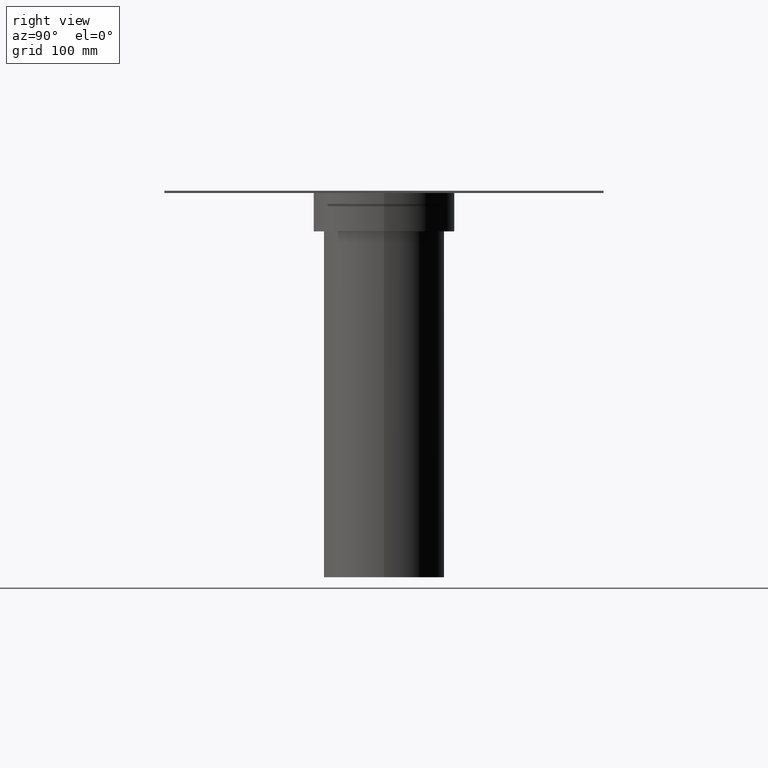
[diagram: clean part render]
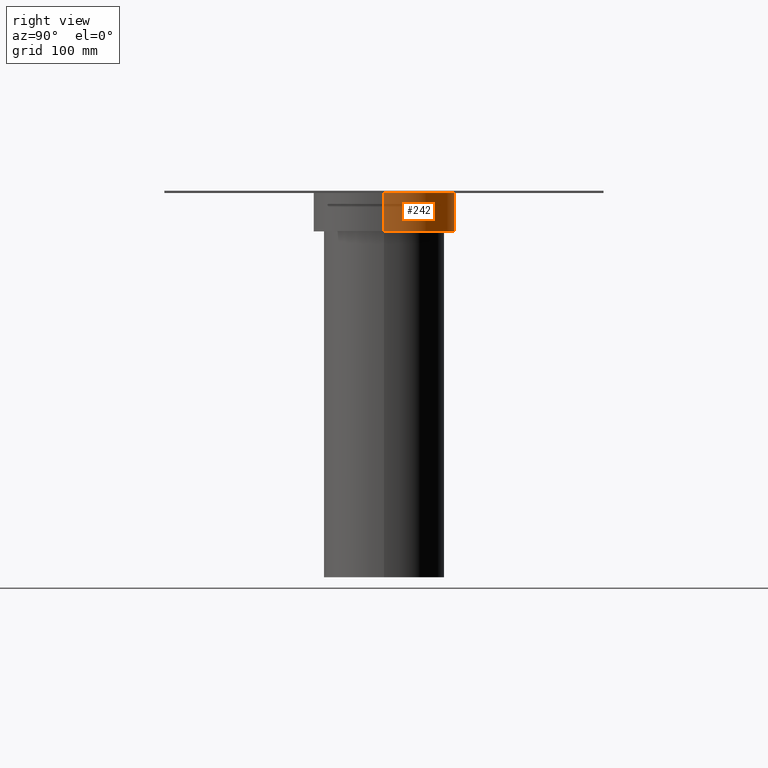
[diagram: same view with one face highlighted and labeled with its STEP entity id]
A machine part, right view. The second image highlights one B-rep face of the part: STEP entity #242.
In plain terms, the highlighted cylindrical surface (partial cylindrical patch) has radius 64.5 mm, axis along (0, 0, 1).
Its self-contained STEP definition (entity closure, byte-faithful):
#44=FACE_OUTER_BOUND('',#62,.T.);
#62=EDGE_LOOP('',(#215,#216,#217,#218));
#81=LINE('',#429,#99);
#82=LINE('',#432,#100);
#99=VECTOR('',#357,304.8);
#100=VECTOR('',#360,304.8);
#111=CIRCLE('',#291,64.5);
#112=CIRCLE('',#292,64.5);
#129=VERTEX_POINT('',#425);
#130=VERTEX_POINT('',#426);
#131=VERTEX_POINT('',#428);
#132=VERTEX_POINT('',#430);
#158=EDGE_CURVE('',#131,#129,#81,.T.);
#160=EDGE_CURVE('',#130,#132,#82,.T.);
#161=EDGE_CURVE('',#130,#129,#111,.T.);
#162=EDGE_CURVE('',#131,#132,#112,.T.);
#215=ORIENTED_EDGE('',*,*,#161,.F.);
#216=ORIENTED_EDGE('',*,*,#160,.T.);
#217=ORIENTED_EDGE('',*,*,#162,.F.);
#218=ORIENTED_EDGE('',*,*,#158,.T.);
#228=CYLINDRICAL_SURFACE('',#290,64.5);
#242=ADVANCED_FACE('',(#44),#228,.T.);
#290=AXIS2_PLACEMENT_3D('',#433,#361,#362);
#291=AXIS2_PLACEMENT_3D('',#434,#363,#364);
#292=AXIS2_PLACEMENT_3D('',#435,#365,#366);
#357=DIRECTION('',(3.14224836626761E-15,0.,1.));
#360=DIRECTION('',(-3.14224836626761E-15,0.,-1.));
#361=DIRECTION('center_axis',(3.25146821111197E-15,0.,1.));
#362=DIRECTION('ref_axis',(-1.,1.61554457443259E-15,3.14786956191393E-15));
#363=DIRECTION('center_axis',(3.25146821111197E-15,0.,1.));
#364=DIRECTION('ref_axis',(-1.,1.61554457443259E-15,3.14786956191393E-15));
#365=DIRECTION('center_axis',(-3.25146821111197E-15,0.,-1.));
#366=DIRECTION('ref_axis',(-1.,1.61554457443259E-15,3.14786956191393E-15));
#425=CARTESIAN_POINT('',(-64.5000000000007,3.59522992132949E-13,-220.));
#426=CARTESIAN_POINT('',(64.4999999999993,-2.08405250101804E-13,-220.));
#428=CARTESIAN_POINT('',(-64.5000000000008,0.,-255.));
#429=CARTESIAN_POINT('',(-64.5000000000008,4.16810500203607E-13,-255.));
#430=CARTESIAN_POINT('',(64.4999999999992,-1.79761496066475E-13,-255.000000000001));
#432=CARTESIAN_POINT('',(64.4999999999993,-1.79761496066475E-13,-220.));
#433=CARTESIAN_POINT('Origin',(-8.29070145869082E-13,-1.04202625050902E-13,
-255.));
#434=CARTESIAN_POINT('Origin',(-7.15268758480161E-13,-1.04202625050902E-13,
-220.));
#435=CARTESIAN_POINT('Origin',(-8.29070145869082E-13,-1.04202625050902E-13,
-255.));